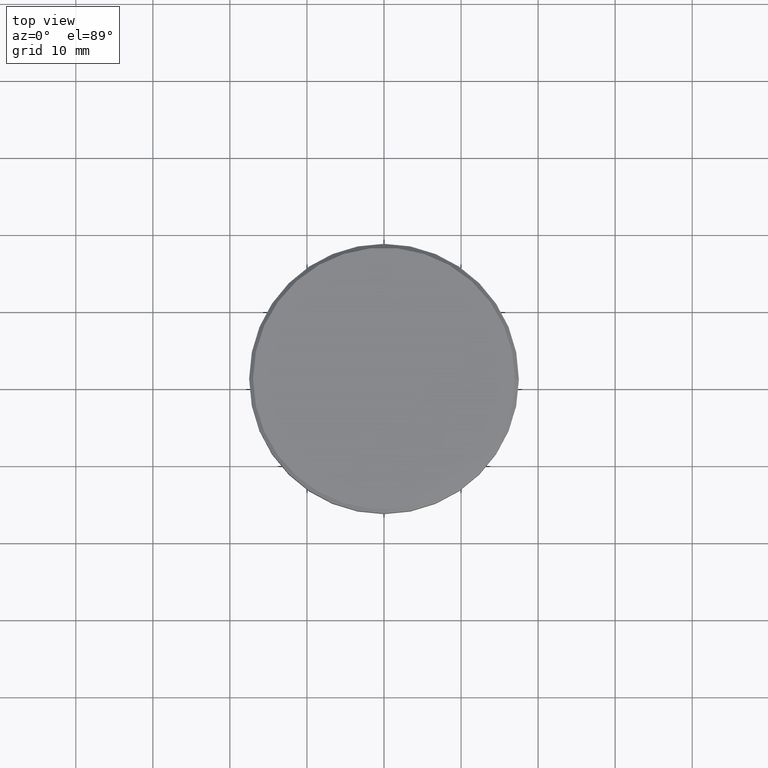
[diagram: clean part render]
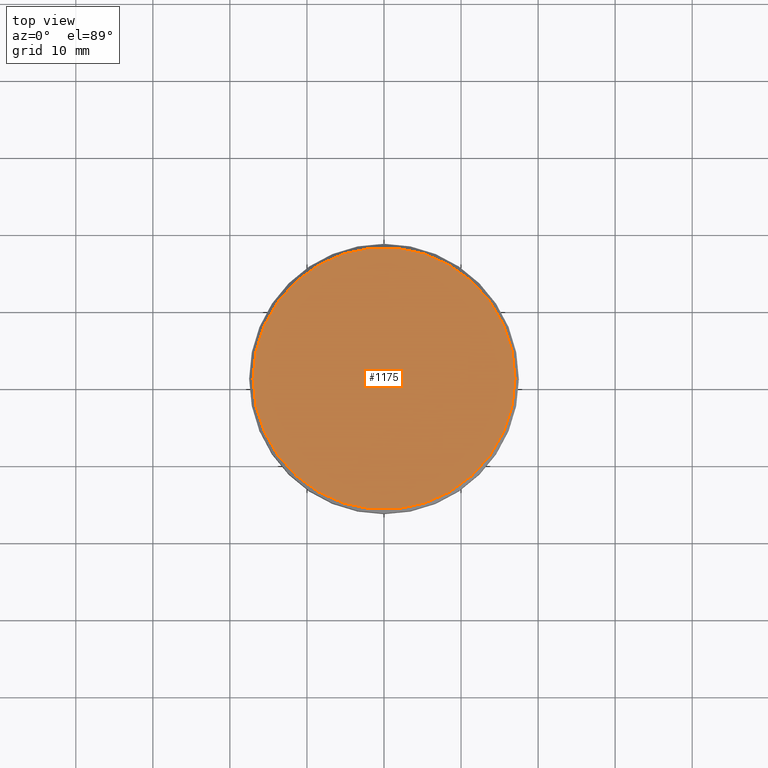
[diagram: same view with one face highlighted and labeled with its STEP entity id]
A machine part, top view. The second image highlights one B-rep face of the part: STEP entity #1175.
In plain terms, the highlighted planar face has unit normal (0, -0, 1).
Its self-contained STEP definition (entity closure, byte-faithful):
#7 = FACE_OUTER_BOUND ( 'NONE', #45, .T. ) ;
#31 = EDGE_CURVE ( 'NONE', #1096, #370, #161, .T. ) ;
#45 = EDGE_LOOP ( 'NONE', ( #633, #748 ) ) ;
#91 = CARTESIAN_POINT ( 'NONE',  ( 17.00000000000000000, 2.112515728529184067E-15, 0.000000000000000000 ) ) ;
#92 = DIRECTION ( 'NONE',  ( 1.000000000000000000, 0.000000000000000000, 0.000000000000000000 ) ) ;
#161 = CIRCLE ( 'NONE', #915, 17.00000000000000000 ) ;
#201 = CARTESIAN_POINT ( 'NONE',  ( 0.000000000000000000, 0.000000000000000000, 0.000000000000000000 ) ) ;
#294 = DIRECTION ( 'NONE',  ( 1.000000000000000000, 0.000000000000000000, 0.000000000000000000 ) ) ;
#323 = EDGE_CURVE ( 'NONE', #370, #1096, #1173, .T. ) ;
#360 = PLANE ( 'NONE',  #671 ) ;
#370 = VERTEX_POINT ( 'NONE', #91 ) ;
#420 = AXIS2_PLACEMENT_3D ( 'NONE', #201, #1118, #498 ) ;
#498 = DIRECTION ( 'NONE',  ( 1.000000000000000000, 0.000000000000000000, 0.000000000000000000 ) ) ;
#633 = ORIENTED_EDGE ( 'NONE', *, *, #31, .T. ) ;
#671 = AXIS2_PLACEMENT_3D ( 'NONE', #1078, #974, #92 ) ;
#748 = ORIENTED_EDGE ( 'NONE', *, *, #323, .T. ) ;
#849 = DIRECTION ( 'NONE',  ( -0.000000000000000000, -0.000000000000000000, 1.000000000000000000 ) ) ;
#915 = AXIS2_PLACEMENT_3D ( 'NONE', #1101, #849, #294 ) ;
#956 = CARTESIAN_POINT ( 'NONE',  ( -17.00000000000000000, 0.000000000000000000, 0.000000000000000000 ) ) ;
#974 = DIRECTION ( 'NONE',  ( 0.000000000000000000, -0.000000000000000000, 1.000000000000000000 ) ) ;
#1078 = CARTESIAN_POINT ( 'NONE',  ( 0.000000000000000000, 0.000000000000000000, 0.000000000000000000 ) ) ;
#1096 = VERTEX_POINT ( 'NONE', #956 ) ;
#1101 = CARTESIAN_POINT ( 'NONE',  ( 0.000000000000000000, 0.000000000000000000, 0.000000000000000000 ) ) ;
#1118 = DIRECTION ( 'NONE',  ( -0.000000000000000000, -0.000000000000000000, 1.000000000000000000 ) ) ;
#1173 = CIRCLE ( 'NONE', #420, 17.00000000000000000 ) ;
#1175 = ADVANCED_FACE ( 'NONE', ( #7 ), #360, .T. ) ;